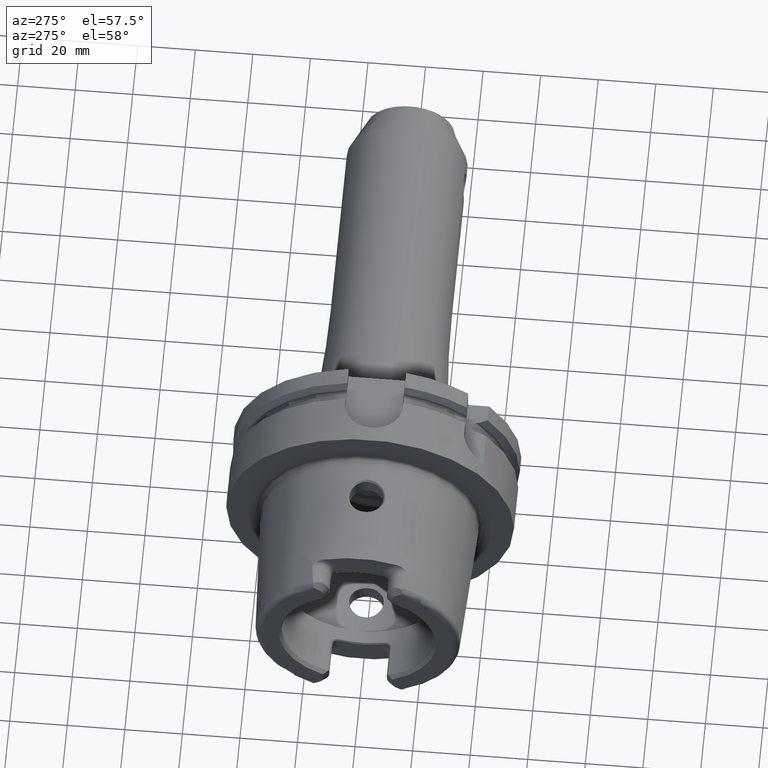
[diagram: clean part render]
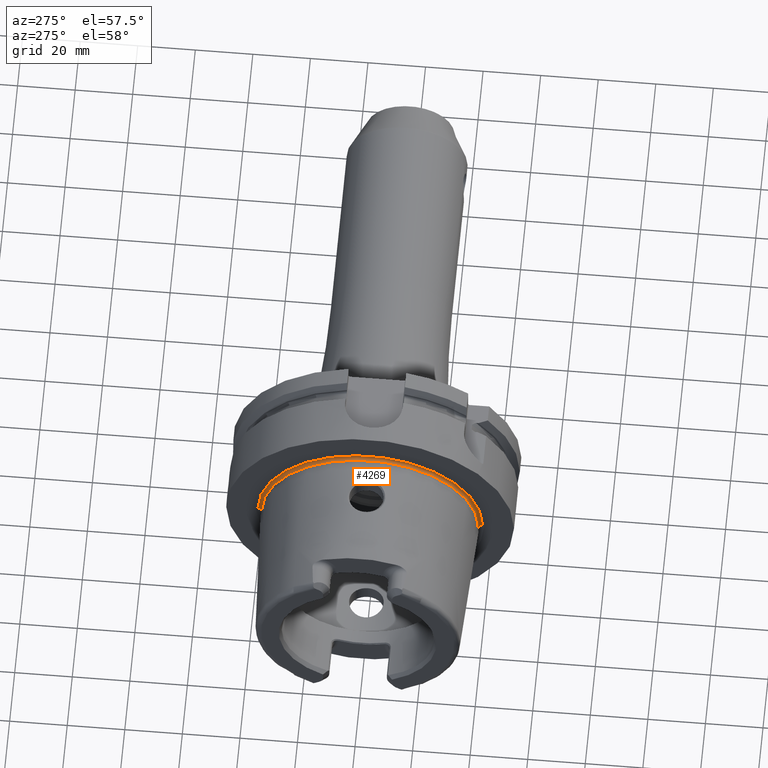
[diagram: same view with one face highlighted and labeled with its STEP entity id]
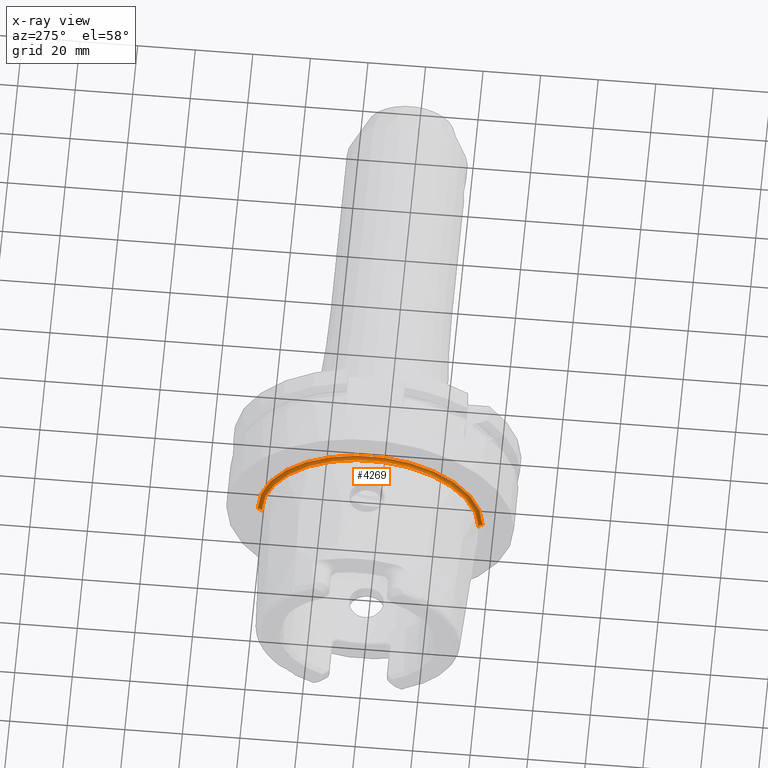
[diagram: x-ray of the same camera — body ghosted, the highlighted face saturated]
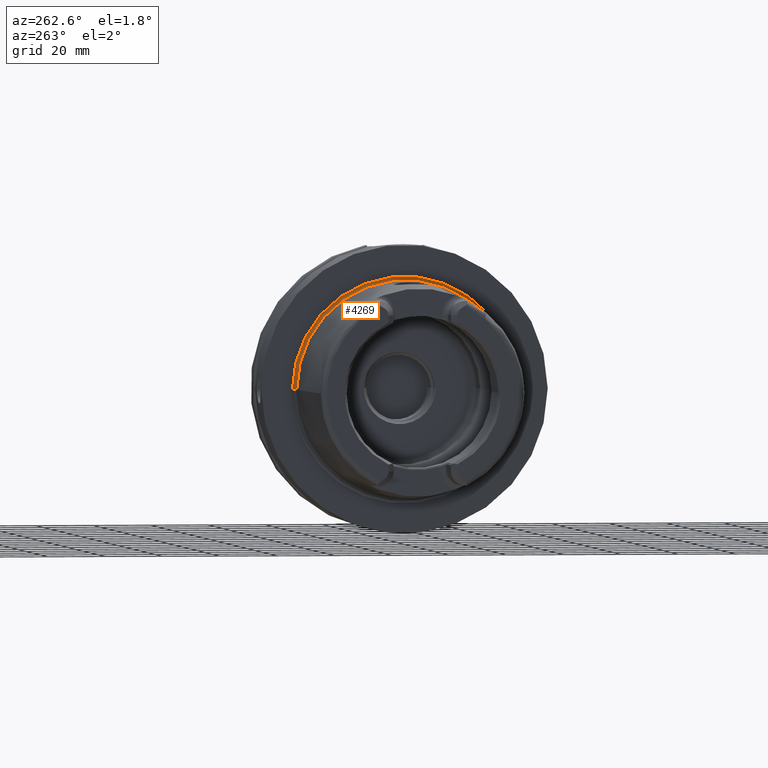
[diagram: same view with one face highlighted and labeled with its STEP entity id]
A machine part, auxiliary view. The second image highlights one B-rep face of the part: STEP entity #4269.
The next image is the same camera in x-ray: the body ghosted, the highlighted face saturated — about 0% of this face is hidden behind the body in this view.
A second angle (auxiliary view) of the same face is appended — the face is thin or edge-on in the first view.
In plain terms, the highlighted toroidal blend (fillet) surface has major radius 38.6823 mm and minor (blend) radius 1 mm.
Its self-contained STEP definition (entity closure, byte-faithful):
#872=CARTESIAN_POINT('',(-7.005712886803E-1,0.E0,0.E0));
#873=DIRECTION('',(-1.E0,0.E0,0.E0));
#874=DIRECTION('',(0.E0,-1.E0,0.E0));
#875=AXIS2_PLACEMENT_3D('',#872,#873,#874);
#877=CARTESIAN_POINT('',(2.298462793018E-1,0.E0,0.E0));
#878=DIRECTION('',(-1.E0,0.E0,0.E0));
#879=DIRECTION('',(0.E0,-1.E0,0.E0));
#880=AXIS2_PLACEMENT_3D('',#877,#878,#879);
#882=CARTESIAN_POINT('',(-7.005712886803E-1,3.868225E1,0.E0));
#883=DIRECTION('',(0.E0,0.E0,-1.E0));
#884=DIRECTION('',(9.304175679820E-1,3.665012267243E-1,0.E0));
#885=AXIS2_PLACEMENT_3D('',#882,#883,#884);
#887=CARTESIAN_POINT('',(-7.005712886803E-1,-3.868225E1,0.E0));
#888=DIRECTION('',(0.E0,0.E0,1.E0));
#889=DIRECTION('',(9.304175679820E-1,-3.665012267243E-1,0.E0));
#890=AXIS2_PLACEMENT_3D('',#887,#888,#889);
#2881=CARTESIAN_POINT('',(2.298462793018E-1,-3.904875122672E1,0.E0));
#2882=CARTESIAN_POINT('',(-7.005712886803E-1,-3.768225E1,0.E0));
#2883=VERTEX_POINT('',#2881);
#2884=VERTEX_POINT('',#2882);
#2889=CARTESIAN_POINT('',(2.298462793018E-1,3.904875122672E1,0.E0));
#2890=CARTESIAN_POINT('',(-7.005712886803E-1,3.768225E1,0.E0));
#2891=VERTEX_POINT('',#2889);
#2892=VERTEX_POINT('',#2890);
#4255=CARTESIAN_POINT('',(-7.005712886803E-1,0.E0,0.E0));
#4256=DIRECTION('',(-1.E0,0.E0,0.E0));
#4257=DIRECTION('',(0.E0,1.E0,0.E0));
#4258=AXIS2_PLACEMENT_3D('',#4255,#4256,#4257);
#4259=TOROIDAL_SURFACE('',#4258,3.868225E1,1.E0);
#4261=ORIENTED_EDGE('',*,*,#4260,.T.);
#4262=ORIENTED_EDGE('',*,*,#4250,.T.);
#4264=ORIENTED_EDGE('',*,*,#4263,.F.);
#4266=ORIENTED_EDGE('',*,*,#4265,.F.);
#4267=EDGE_LOOP('',(#4261,#4262,#4264,#4266));
#4268=FACE_OUTER_BOUND('',#4267,.F.);
#4269=ADVANCED_FACE('',(#4268),#4259,.F.);
#876=CIRCLE('',#875,3.768225E1);
#881=CIRCLE('',#880,3.904875122672E1);
#886=CIRCLE('',#885,1.E0);
#891=CIRCLE('',#890,1.E0);
#4250=EDGE_CURVE('',#2884,#2892,#876,.T.);
#4260=EDGE_CURVE('',#2883,#2884,#891,.T.);
#4263=EDGE_CURVE('',#2891,#2892,#886,.T.);
#4265=EDGE_CURVE('',#2883,#2891,#881,.T.);